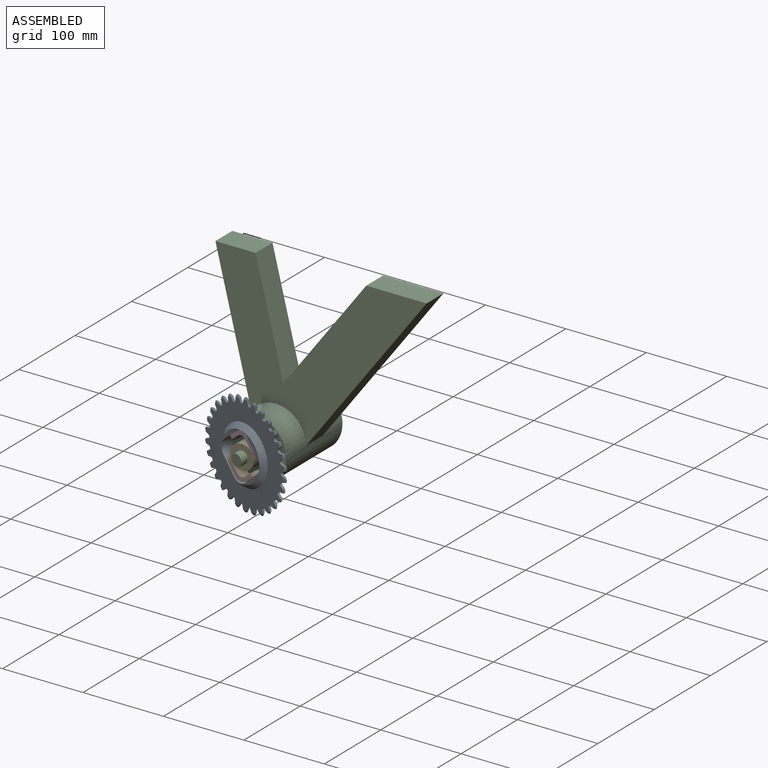
[diagram: assembled view]
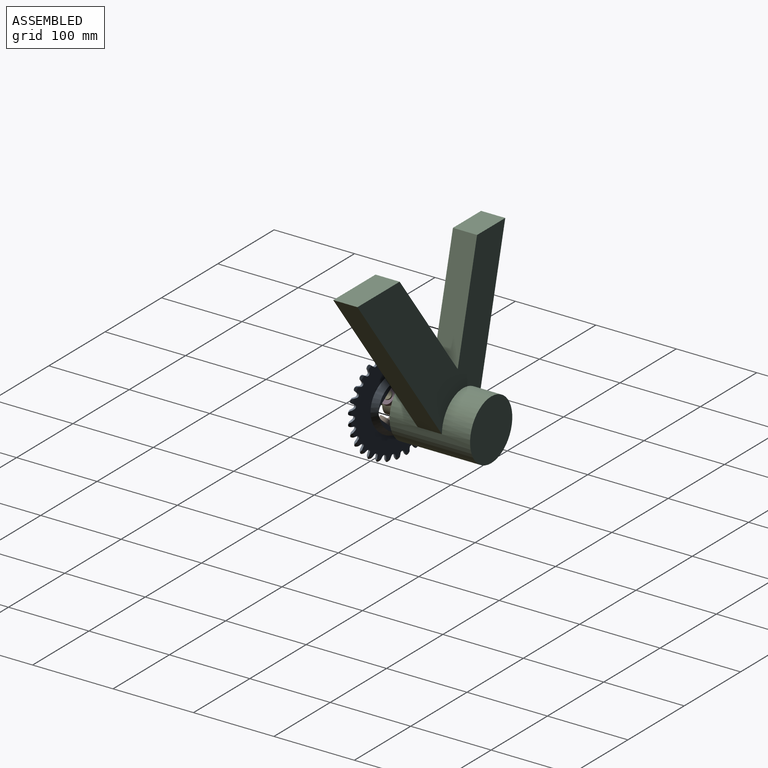
[diagram: assembled view, second angle]
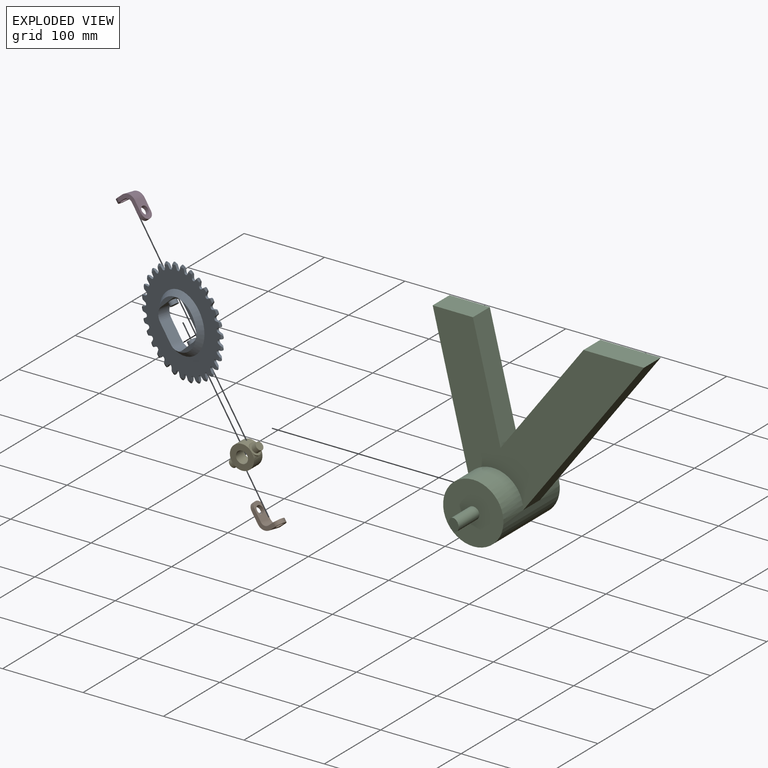
[diagram: exploded view]
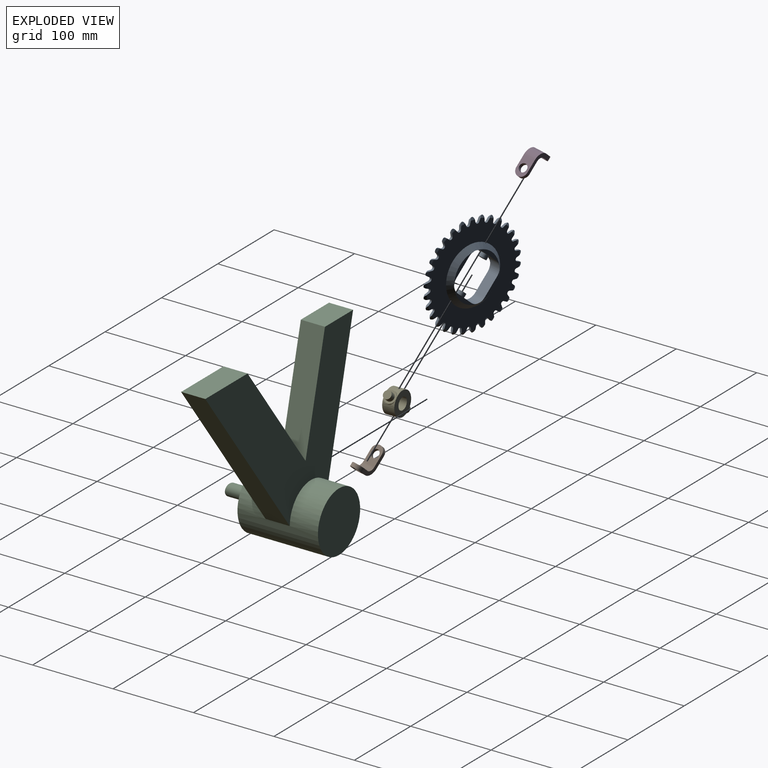
[diagram: exploded view, second angle]
ASSEMBLY  parts=5 mates=10
PART A: 294 faces, bbox 129.8x15x130 mm
  f0: plane 38.39x6.94mm, normal (0,1,0), area 116mm2, adj f35,f247,f250,f251
  f1: plane 38.39x6.94mm, normal (0,1,0), area 116mm2, adj f35,f248,f251,f252
  f2: plane 38.39x6.94mm, normal (0,1,0), area 116mm2, adj f35,f249,f252,f253
  f3: plane 124x123.77mm, normal (0,1,0), area 7133.3mm2, adj f4,f5,f6,f7,f8,f9,f10,f11
  f4: cone r=62mm half-angle=63.4deg, axis (0,-1,0), area 13.4mm2, adj f3,f240,f241,f242,f243,f244,f245,f258
  f5: cone r=62mm half-angle=63.4deg, axis (0,-1,0), area 13.4mm2, adj f3,f233,f234,f235,f236,f237,f238,f259
  f6: cone r=62mm half-angle=63.4deg, axis (0,-1,0), area 13.4mm2, adj f3,f226,f227,f228,f229,f230,f231,f260
  f7: cone r=62mm half-angle=63.4deg, axis (0,-1,0), area 13.4mm2, adj f3,f219,f220,f221,f222,f223,f224,f261
  f8: cone r=62mm half-angle=63.4deg, axis (0,-1,0), area 13.4mm2, adj f3,f212,f213,f214,f215,f216,f217,f262
  f9: cone r=62mm half-angle=63.4deg, axis (0,-1,0), area 13.4mm2, adj f3,f205,f206,f207,f208,f209,f210,f263
  f10: cone r=62mm half-angle=63.4deg, axis (0,-1,0), area 13.4mm2, adj f3,f198,f199,f200,f201,f202,f203,f264
  f11: cone r=62mm half-angle=63.4deg, axis (0,-1,0), area 13.4mm2, adj f3,f191,f192,f193,f194,f195,f196,f265
  f12: cone r=62mm half-angle=63.4deg, axis (0,-1,0), area 13.4mm2, adj f3,f184,f185,f186,f187,f188,f189,f266
  f13: cone r=62mm half-angle=63.4deg, axis (0,-1,0), area 13.4mm2, adj f3,f177,f178,f179,f180,f181,f182,f267
  f14: cone r=62mm half-angle=63.4deg, axis (0,-1,0), area 13.4mm2, adj f3,f170,f171,f172,f173,f174,f175,f268
  f15: cone r=62mm half-angle=63.4deg, axis (0,-1,0), area 13.4mm2, adj f3,f163,f164,f165,f166,f167,f168,f269
  f16: cone r=62mm half-angle=63.4deg, axis (0,-1,0), area 13.4mm2, adj f3,f156,f157,f158,f159,f160,f161,f270
  f17: cone r=62mm half-angle=63.4deg, axis (0,-1,0), area 13.4mm2, adj f3,f149,f150,f151,f152,f153,f154,f271
  f18: cone r=62mm half-angle=63.4deg, axis (0,-1,0), area 13.4mm2, adj f3,f142,f143,f144,f145,f146,f147,f272
  f19: cone r=62mm half-angle=63.4deg, axis (0,-1,0), area 13.4mm2, adj f3,f135,f136,f137,f139,f140,f141,f273
  f20: cone r=62mm half-angle=63.4deg, axis (0,-1,0), area 13.4mm2, adj f3,f128,f129,f130,f132,f133,f134,f274
  f21: cone r=62mm half-angle=63.4deg, axis (0,-1,0), area 13.4mm2, adj f3,f121,f122,f123,f125,f126,f127,f275
  f22: cone r=62mm half-angle=63.4deg, axis (0,-1,0), area 13.4mm2, adj f3,f114,f115,f116,f118,f119,f120,f276
  f23: cone r=62mm half-angle=63.4deg, axis (0,-1,0), area 13.4mm2, adj f3,f107,f108,f109,f111,f112,f113,f277
  f24: cone r=62mm half-angle=63.4deg, axis (0,-1,0), area 13.4mm2, adj f3,f100,f101,f102,f104,f105,f106,f278
  f25: cone r=62mm half-angle=63.4deg, axis (0,-1,0), area 13.4mm2, adj f3,f93,f94,f95,f97,f98,f99,f279
  f26: cone r=62mm half-angle=63.4deg, axis (0,-1,0), area 13.4mm2, adj f3,f86,f87,f88,f90,f91,f92,f280
  f27: cone r=62mm half-angle=63.4deg, axis (0,-1,0), area 13.4mm2, adj f3,f79,f80,f81,f83,f84,f85,f281
  f28: cone r=62mm half-angle=63.4deg, axis (0,-1,0), area 13.4mm2, adj f3,f72,f73,f74,f76,f77,f78,f282
  f29: cone r=62mm half-angle=63.4deg, axis (0,-1,0), area 13.4mm2, adj f3,f65,f66,f67,f69,f70,f71,f283
  f30: cone r=62mm half-angle=63.4deg, axis (0,-1,0), area 13.4mm2, adj f3,f58,f59,f60,f62,f63,f64,f284
  f31: cone r=62mm half-angle=63.4deg, axis (0,-1,0), area 13.4mm2, adj f3,f51,f52,f53,f55,f56,f57,f285
  f32: cone r=62mm half-angle=63.4deg, axis (0,-1,0), area 13.4mm2, adj f3,f44,f45,f46,f48,f49,f50,f286
  f33: cone r=62mm half-angle=63.4deg, axis (0,-1,0), area 13.4mm2, adj f3,f36,f37,f38,f41,f42,f43,f287
  f34: plane 38.39x6.94mm, normal (0,1,0), area 116mm2, adj f35,f246,f250,f253
  f35: cone r=30mm half-angle=45deg, axis (0,-1,0), area 1755.7mm2, adj f0,f1,f2,f3,f34,f250,f251,f252
  f36: plane 1.25x0.36mm, normal (-0.28,0,0.96), area 0.2mm2, adj f33,f38,f287
  f37: plane 5.09x3mm, normal (-0.97,0,0.25), area 15mm2, adj f3,f33,f38,f39,f257,f287
  f38: plane 1.84x1.53mm, normal (-0.8,0,0.6), area 2mm2, adj f33,f36,f37,f287
  f39: cylinder r=2.5mm len=4.65mm, axis (0,-1,0), area 18.2mm2, adj f3,f37,f245,f257
  f40: cylinder r=2.5mm len=4.65mm, axis (0,-1,0), area 18.2mm2, adj f3,f43,f45,f257
  f41: plane 1.25x0.36mm, normal (0.28,0,0.96), area 0.2mm2, adj f33,f42,f287
  f42: plane 1.84x1.53mm, normal (0.8,0,0.6), area 2mm2, adj f33,f41,f43,f287
  f43: plane 5.09x3mm, normal (0.97,0,0.25), area 15mm2, adj f3,f33,f40,f42,f257,f287
  f44: plane 1.3x0.35mm, normal (-0.07,0,1), area 0.2mm2, adj f32,f46,f286
  f45: plane 4.7x3mm, normal (-0.89,0,0.45), area 15mm2, adj f3,f32,f40,f46,f257,f286
  f46: plane 1.84x1.44mm, normal (-0.66,0,0.75), area 2mm2, adj f32,f44,f45,f286
  f47: cylinder r=2.5mm len=4.45mm, axis (0,-1,0), area 18.2mm2, adj f3,f50,f52,f257
  f48: plane 1.15x0.61mm, normal (0.47,0,0.88), area 0.2mm2, adj f32,f49,f286
  f49: plane 1.84x1.73mm, normal (0.91,0,0.42), area 2mm2, adj f32,f48,f50,f286
  f50: plane 5.26x3mm, normal (1,0,0.05), area 15mm2, adj f3,f32,f47,f49,f257,f286
  f51: plane 1.29x0.35mm, normal (0.14,0,0.99), area 0.2mm2, adj f31,f53,f285
  f52: plane 4.11x3.29mm, normal (-0.78,0,0.62), area 15mm2, adj f3,f31,f47,f53,f257,f285
  f53: plane 1.84x1.67mm, normal (-0.49,0,0.87), area 2mm2, adj f31,f51,f52,f285
  f54: cylinder r=2.5mm len=4.09mm, axis (0,-1,0), area 18.2mm2, adj f3,f57,f59,f257
  f55: plane 1x0.84mm, normal (0.64,0,0.77), area 0.2mm2, adj f31,f56,f285
  f56: plane 1.86x1.84mm, normal (0.97,0,0.22), area 2mm2, adj f31,f55,f57,f285
  f57: plane 5.19x3mm, normal (0.99,0,-0.16), area 15mm2, adj f3,f31,f54,f56,f257,f285
  f58: plane 1.22x0.45mm, normal (0.34,0,0.94), area 0.2mm2, adj f30,f60,f284
  f59: plane 4.07x3.34mm, normal (-0.63,0,0.77), area 15mm2, adj f3,f30,f54,f60,f257,f284
  f60: plane 1.84x1.82mm, normal (-0.29,0,0.96), area 2mm2, adj f30,f58,f59,f284
  f61: cylinder r=2.5mm len=3.65mm, axis (0,-1,0), area 18.2mm2, adj f3,f64,f66,f257
  f62: plane 1.03x0.8mm, normal (0.79,0,0.62), area 0.2mm2, adj f30,f63,f284
  f63: plane 1.9x1.84mm, normal (1,0,0.01), area 2mm2, adj f30,f62,f64,f284
  f64: plane 4.9x3mm, normal (0.93,0,-0.36), area 15mm2, adj f3,f30,f61,f63,f257,f284
  f65: plane 1.1x0.69mm, normal (0.53,0,0.85), area 0.2mm2, adj f29,f67,f283
  f66: plane 4.67x3mm, normal (-0.46,0,0.89), area 15mm2, adj f3,f29,f61,f67,f257,f283
  f67: plane 1.9x1.84mm, normal (-0.09,0,1), area 2mm2, adj f29,f65,f66,f283
  f68: cylinder r=2.5mm len=3.87mm, axis (0,-1,0), area 18.2mm2, adj f3,f71,f73,f257
  f69: plane 1.17x0.58mm, normal (0.9,0,0.44), area 0.2mm2, adj f29,f70,f283
  f70: plane 1.87x1.84mm, normal (0.98,0,-0.19), area 2mm2, adj f29,f69,f71,f283
  f71: plane 4.4x3mm, normal (0.84,0,-0.55), area 15mm2, adj f3,f29,f68,f70,f257,f283
  f72: plane 0.94x0.91mm, normal (0.69,0,0.72), area 0.2mm2, adj f28,f74,f282
  f73: plane 5.07x3mm, normal (-0.26,0,0.96), area 15mm2, adj f3,f28,f68,f74,f257,f282
  f74: plane 1.89x1.84mm, normal (0.12,0,0.99), area 2mm2, adj f28,f72,f73,f282
  f75: cylinder r=2.5mm len=4.28mm, axis (0,-1,0), area 18.2mm2, adj f3,f78,f80,f257
  f76: plane 1.26x0.35mm, normal (0.97,0,0.24), area 0.2mm2, adj f28,f77,f282
  f77: plane 1.84x1.75mm, normal (0.92,0,-0.39), area 2mm2, adj f28,f76,f78,f282
  f78: plane 3.74x3.7mm, normal (0.7,0,-0.71), area 15mm2, adj f3,f28,f75,f77,f257,f282
  f79: plane 1.08x0.73mm, normal (0.83,0,0.56), area 0.2mm2, adj f27,f81,f281
  f80: plane 5.25x3mm, normal (-0.06,0,1), area 15mm2, adj f3,f27,f75,f81,f257,f281
  f81: plane 1.84x1.8mm, normal (0.32,0,0.95), area 2mm2, adj f27,f79,f80,f281
  f82: cylinder r=2.5mm len=4.58mm, axis (0,-1,0), area 18.2mm2, adj f3,f85,f87,f257
  f83: plane 1.3x0.35mm, normal (1,0,0.04), area 0.2mm2, adj f27,f84,f281
  f84: plane 1.84x1.56mm, normal (0.82,0,-0.58), area 2mm2, adj f27,f83,f85,f281
  f85: plane 4.43x3mm, normal (0.54,0,-0.84), area 15mm2, adj f3,f27,f82,f84,f257,f281
  f86: plane 1.21x0.49mm, normal (0.93,0,0.37), area 0.2mm2, adj f26,f88,f280
  f87: plane 5.2x3mm, normal (0.15,0,0.99), area 15mm2, adj f3,f26,f82,f88,f257,f280
  f88: plane 1.84x1.64mm, normal (0.51,0,0.86), area 2mm2, adj f26,f86,f87,f280
  f89: cylinder r=2.5mm len=4.68mm, axis (0,-1,0), area 18.2mm2, adj f3,f92,f94,f257
  f90: plane 1.28x0.35mm, normal (0.98,0,-0.17), area 0.2mm2, adj f26,f91,f280
  f91: plane 1.84x1.4mm, normal (0.68,0,-0.73), area 2mm2, adj f26,f90,f92,f280
  f92: plane 4.92x3mm, normal (0.35,0,-0.94), area 15mm2, adj f3,f26,f89,f91,f257,f280
  f93: plane 1.28x0.35mm, normal (0.98,0,0.17), area 0.2mm2, adj f25,f95,f279
  f94: plane 4.92x3mm, normal (0.35,0,0.94), area 15mm2, adj f3,f25,f89,f95,f257,f279
  f95: plane 1.84x1.4mm, normal (0.68,0,0.73), area 2mm2, adj f25,f93,f94,f279
  f96: cylinder r=2.5mm len=4.58mm, axis (0,-1,0), area 18.2mm2, adj f3,f99,f101,f257
  f97: plane 1.21x0.49mm, normal (0.93,0,-0.37), area 0.2mm2, adj f25,f98,f279
  f98: plane 1.84x1.64mm, normal (0.51,0,-0.86), area 2mm2, adj f25,f97,f99,f279
  f99: plane 5.2x3mm, normal (0.15,0,-0.99), area 15mm2, adj f3,f25,f96,f98,f257,f279
  f100: plane 1.3x0.35mm, normal (1,0,-0.04), area 0.2mm2, adj f24,f102,f278
  f101: plane 4.43x3mm, normal (0.54,0,0.84), area 15mm2, adj f3,f24,f96,f102,f257,f278
  f102: plane 1.84x1.56mm, normal (0.82,0,0.58), area 2mm2, adj f24,f100,f101,f278
  f103: cylinder r=2.5mm len=4.28mm, axis (0,-1,0), area 18.2mm2, adj f3,f106,f108,f257
  f104: plane 1.08x0.73mm, normal (0.83,0,-0.56), area 0.2mm2, adj f24,f105,f278
  f105: plane 1.84x1.8mm, normal (0.32,0,-0.95), area 2mm2, adj f24,f104,f106,f278
  f106: plane 5.25x3mm, normal (-0.06,0,-1), area 15mm2, adj f3,f24,f103,f105,f257,f278
  f107: plane 1.26x0.35mm, normal (0.97,0,-0.24), area 0.2mm2, adj f23,f109,f277
  f108: plane 3.74x3.7mm, normal (0.7,0,0.71), area 15mm2, adj f3,f23,f103,f109,f257,f277
  f109: plane 1.84x1.75mm, normal (0.92,0,0.39), area 2mm2, adj f23,f107,f108,f277
  f110: cylinder r=2.5mm len=3.87mm, axis (0,-1,0), area 18.2mm2, adj f3,f113,f115,f257
  f111: plane 0.94x0.91mm, normal (0.69,0,-0.72), area 0.2mm2, adj f23,f112,f277
  f112: plane 1.89x1.84mm, normal (0.12,0,-0.99), area 2mm2, adj f23,f111,f113,f277
  f113: plane 5.07x3mm, normal (-0.26,0,-0.96), area 15mm2, adj f3,f23,f110,f112,f257,f277
  f114: plane 1.17x0.58mm, normal (0.9,0,-0.44), area 0.2mm2, adj f22,f116,f276
  f115: plane 4.4x3mm, normal (0.84,0,0.55), area 15mm2, adj f3,f22,f110,f116,f257,f276
  f116: plane 1.87x1.84mm, normal (0.98,0,0.19), area 2mm2, adj f22,f114,f115,f276
  f117: cylinder r=2.5mm len=3.65mm, axis (0,-1,0), area 18.2mm2, adj f3,f120,f122,f257
  f118: plane 1.1x0.69mm, normal (0.53,0,-0.85), area 0.2mm2, adj f22,f119,f276
  f119: plane 1.9x1.84mm, normal (-0.09,0,-1), area 2mm2, adj f22,f118,f120,f276
  f120: plane 4.67x3mm, normal (-0.46,0,-0.89), area 15mm2, adj f3,f22,f117,f119,f257,f276
  f121: plane 1.03x0.8mm, normal (0.79,0,-0.62), area 0.2mm2, adj f21,f123,f275
  f122: plane 4.9x3mm, normal (0.93,0,0.36), area 15mm2, adj f3,f21,f117,f123,f257,f275
  f123: plane 1.9x1.84mm, normal (1,0,-0.01), area 2mm2, adj f21,f121,f122,f275
  f124: cylinder r=2.5mm len=4.09mm, axis (0,-1,0), area 18.2mm2, adj f3,f127,f129,f257
  f125: plane 1.22x0.45mm, normal (0.34,0,-0.94), area 0.2mm2, adj f21,f126,f275
  f126: plane 1.84x1.82mm, normal (-0.29,0,-0.96), area 2mm2, adj f21,f125,f127,f275
  f127: plane 4.07x3.34mm, normal (-0.63,0,-0.77), area 15mm2, adj f3,f21,f124,f126,f257,f275
  f128: plane 1x0.84mm, normal (0.64,0,-0.77), area 0.2mm2, adj f20,f130,f274
  f129: plane 5.19x3mm, normal (0.99,0,0.16), area 15mm2, adj f3,f20,f124,f130,f257,f274
  f130: plane 1.86x1.84mm, normal (0.97,0,-0.22), area 2mm2, adj f20,f128,f129,f274
  f131: cylinder r=2.5mm len=4.45mm, axis (0,-1,0), area 18.2mm2, adj f3,f134,f136,f257
  f132: plane 1.29x0.35mm, normal (0.14,0,-0.99), area 0.2mm2, adj f20,f133,f274
  f133: plane 1.84x1.67mm, normal (-0.49,0,-0.87), area 2mm2, adj f20,f132,f134,f274
  f134: plane 4.11x3.29mm, normal (-0.78,0,-0.62), area 15mm2, adj f3,f20,f131,f133,f257,f274
  f135: plane 1.15x0.61mm, normal (0.47,0,-0.88), area 0.2mm2, adj f19,f137,f273
  f136: plane 5.26x3mm, normal (1,0,-0.05), area 15mm2, adj f3,f19,f131,f137,f257,f273
  f137: plane 1.84x1.73mm, normal (0.91,0,-0.42), area 2mm2, adj f19,f135,f136,f273
  f138: cylinder r=2.5mm len=4.65mm, axis (0,-1,0), area 18.2mm2, adj f3,f141,f143,f257
  f139: plane 1.3x0.35mm, normal (-0.07,0,-1), area 0.2mm2, adj f19,f140,f273
  f140: plane 1.84x1.44mm, normal (-0.66,0,-0.75), area 2mm2, adj f19,f139,f141,f273
  f141: plane 4.7x3mm, normal (-0.89,0,-0.45), area 15mm2, adj f3,f19,f138,f140,f257,f273
  f142: plane 1.25x0.36mm, normal (0.28,0,-0.96), area 0.2mm2, adj f18,f144,f272
  f143: plane 5.09x3mm, normal (0.97,0,-0.25), area 15mm2, adj f3,f18,f138,f144,f257,f272
  f144: plane 1.84x1.53mm, normal (0.8,0,-0.6), area 2mm2, adj f18,f142,f143,f272
  f145: plane 1.25x0.36mm, normal (-0.28,0,-0.96), area 0.2mm2, adj f18,f146,f272
  f146: plane 1.84x1.53mm, normal (-0.8,0,-0.6), area 2mm2, adj f18,f145,f147,f272
  f147: plane 5.09x3mm, normal (-0.97,0,-0.25), area 15mm2, adj f3,f18,f146,f148,f257,f272
  f148: cylinder r=2.5mm len=4.65mm, axis (0,-1,0), area 18.2mm2, adj f3,f147,f150,f257
  f149: plane 1.3x0.35mm, normal (0.07,0,-1), area 0.2mm2, adj f17,f151,f271
  f150: plane 4.7x3mm, normal (0.89,0,-0.45), area 15mm2, adj f3,f17,f148,f151,f257,f271
  f151: plane 1.84x1.44mm, normal (0.66,0,-0.75), area 2mm2, adj f17,f149,f150,f271
  f152: plane 1.15x0.61mm, normal (-0.47,0,-0.88), area 0.2mm2, adj f17,f153,f271
  f153: plane 1.84x1.73mm, normal (-0.91,0,-0.42), area 2mm2, adj f17,f152,f154,f271
  f154: plane 5.26x3mm, normal (-1,0,-0.05), area 15mm2, adj f3,f17,f153,f155,f257,f271
  f155: cylinder r=2.5mm len=4.45mm, axis (0,-1,0), area 18.2mm2, adj f3,f154,f157,f257
  f156: plane 1.29x0.35mm, normal (-0.14,0,-0.99), area 0.2mm2, adj f16,f158,f270
  f157: plane 4.11x3.29mm, normal (0.78,0,-0.62), area 15mm2, adj f3,f16,f155,f158,f257,f270
  f158: plane 1.84x1.67mm, normal (0.49,0,-0.87), area 2mm2, adj f16,f156,f157,f270
  f159: plane 1x0.84mm, normal (-0.64,0,-0.77), area 0.2mm2, adj f16,f160,f270
  f160: plane 1.86x1.84mm, normal (-0.97,0,-0.22), area 2mm2, adj f16,f159,f161,f270
  f161: plane 5.19x3mm, normal (-0.99,0,0.16), area 15mm2, adj f3,f16,f160,f162,f257,f270
  f162: cylinder r=2.5mm len=4.09mm, axis (0,-1,0), area 18.2mm2, adj f3,f161,f164,f257
  f163: plane 1.22x0.45mm, normal (-0.34,0,-0.94), area 0.2mm2, adj f15,f165,f269
  f164: plane 4.07x3.34mm, normal (0.63,0,-0.77), area 15mm2, adj f3,f15,f162,f165,f257,f269
  f165: plane 1.84x1.82mm, normal (0.29,0,-0.96), area 2mm2, adj f15,f163,f164,f269
  f166: plane 1.03x0.8mm, normal (-0.79,0,-0.62), area 0.2mm2, adj f15,f167,f269
  f167: plane 1.9x1.84mm, normal (-1,0,-0.01), area 2mm2, adj f15,f166,f168,f269
  f168: plane 4.9x3mm, normal (-0.93,0,0.36), area 15mm2, adj f3,f15,f167,f169,f257,f269
  f169: cylinder r=2.5mm len=3.65mm, axis (0,-1,0), area 18.2mm2, adj f3,f168,f171,f257
  f170: plane 1.1x0.69mm, normal (-0.53,0,-0.85), area 0.2mm2, adj f14,f172,f268
  f171: plane 4.67x3mm, normal (0.46,0,-0.89), area 15mm2, adj f3,f14,f169,f172,f257,f268
  f172: plane 1.9x1.84mm, normal (0.09,0,-1), area 2mm2, adj f14,f170,f171,f268
  f173: plane 1.17x0.58mm, normal (-0.9,0,-0.44), area 0.2mm2, adj f14,f174,f268
  f174: plane 1.87x1.84mm, normal (-0.98,0,0.19), area 2mm2, adj f14,f173,f175,f268
  f175: plane 4.4x3mm, normal (-0.84,0,0.55), area 15mm2, adj f3,f14,f174,f176,f257,f268
  f176: cylinder r=2.5mm len=3.87mm, axis (0,-1,0), area 18.2mm2, adj f3,f175,f178,f257
  f177: plane 0.94x0.91mm, normal (-0.69,0,-0.72), area 0.2mm2, adj f13,f179,f267
  f178: plane 5.07x3mm, normal (0.26,0,-0.96), area 15mm2, adj f3,f13,f176,f179,f257,f267
  f179: plane 1.89x1.84mm, normal (-0.12,0,-0.99), area 2mm2, adj f13,f177,f178,f267
  f180: plane 1.26x0.35mm, normal (-0.97,0,-0.24), area 0.2mm2, adj f13,f181,f267
  f181: plane 1.84x1.75mm, normal (-0.92,0,0.39), area 2mm2, adj f13,f180,f182,f267
  f182: plane 3.74x3.7mm, normal (-0.7,0,0.71), area 15mm2, adj f3,f13,f181,f183,f257,f267
  f183: cylinder r=2.5mm len=4.28mm, axis (0,-1,0), area 18.2mm2, adj f3,f182,f185,f257
  f184: plane 1.08x0.73mm, normal (-0.83,0,-0.56), area 0.2mm2, adj f12,f186,f266
  f185: plane 5.25x3mm, normal (0.06,0,-1), area 15mm2, adj f3,f12,f183,f186,f257,f266
  f186: plane 1.84x1.8mm, normal (-0.32,0,-0.95), area 2mm2, adj f12,f184,f185,f266
  f187: plane 1.3x0.35mm, normal (-1,0,-0.04), area 0.2mm2, adj f12,f188,f266
  f188: plane 1.84x1.56mm, normal (-0.82,0,0.58), area 2mm2, adj f12,f187,f189,f266
  f189: plane 4.43x3mm, normal (-0.54,0,0.84), area 15mm2, adj f3,f12,f188,f190,f257,f266
  f190: cylinder r=2.5mm len=4.58mm, axis (0,-1,0), area 18.2mm2, adj f3,f189,f192,f257
  f191: plane 1.21x0.49mm, normal (-0.93,0,-0.37), area 0.2mm2, adj f11,f193,f265
  f192: plane 5.2x3mm, normal (-0.15,0,-0.99), area 15mm2, adj f3,f11,f190,f193,f257,f265
  f193: plane 1.84x1.64mm, normal (-0.51,0,-0.86), area 2mm2, adj f11,f191,f192,f265
  f194: plane 1.28x0.35mm, normal (-0.98,0,0.17), area 0.2mm2, adj f11,f195,f265
  f195: plane 1.84x1.4mm, normal (-0.68,0,0.73), area 2mm2, adj f11,f194,f196,f265
  f196: plane 4.92x3mm, normal (-0.35,0,0.94), area 15mm2, adj f3,f11,f195,f197,f257,f265
  f197: cylinder r=2.5mm len=4.68mm, axis (0,-1,0), area 18.2mm2, adj f3,f196,f199,f257
  f198: plane 1.28x0.35mm, normal (-0.98,0,-0.17), area 0.2mm2, adj f10,f200,f264
  f199: plane 4.92x3mm, normal (-0.35,0,-0.94), area 15mm2, adj f3,f10,f197,f200,f257,f264
  f200: plane 1.84x1.4mm, normal (-0.68,0,-0.73), area 2mm2, adj f10,f198,f199,f264
  f201: plane 1.21x0.49mm, normal (-0.93,0,0.37), area 0.2mm2, adj f10,f202,f264
  f202: plane 1.84x1.64mm, normal (-0.51,0,0.86), area 2mm2, adj f10,f201,f203,f264
  f203: plane 5.2x3mm, normal (-0.15,0,0.99), area 15mm2, adj f3,f10,f202,f204,f257,f264
  f204: cylinder r=2.5mm len=4.58mm, axis (0,-1,0), area 18.2mm2, adj f3,f203,f206,f257
  f205: plane 1.3x0.35mm, normal (-1,0,0.04), area 0.2mm2, adj f9,f207,f263
  f206: plane 4.43x3mm, normal (-0.54,0,-0.84), area 15mm2, adj f3,f9,f204,f207,f257,f263
  f207: plane 1.84x1.56mm, normal (-0.82,0,-0.58), area 2mm2, adj f9,f205,f206,f263
  f208: plane 1.08x0.73mm, normal (-0.83,0,0.56), area 0.2mm2, adj f9,f209,f263
  f209: plane 1.84x1.8mm, normal (-0.32,0,0.95), area 2mm2, adj f9,f208,f210,f263
  f210: plane 5.25x3mm, normal (0.06,0,1), area 15mm2, adj f3,f9,f209,f211,f257,f263
  f211: cylinder r=2.5mm len=4.28mm, axis (0,-1,0), area 18.2mm2, adj f3,f210,f213,f257
  f212: plane 1.26x0.35mm, normal (-0.97,0,0.24), area 0.2mm2, adj f8,f214,f262
  f213: plane 3.74x3.7mm, normal (-0.7,0,-0.71), area 15mm2, adj f3,f8,f211,f214,f257,f262
  f214: plane 1.84x1.75mm, normal (-0.92,0,-0.39), area 2mm2, adj f8,f212,f213,f262
  f215: plane 0.94x0.91mm, normal (-0.69,0,0.72), area 0.2mm2, adj f8,f216,f262
  f216: plane 1.89x1.84mm, normal (-0.12,0,0.99), area 2mm2, adj f8,f215,f217,f262
  f217: plane 5.07x3mm, normal (0.26,0,0.96), area 15mm2, adj f3,f8,f216,f218,f257,f262
  f218: cylinder r=2.5mm len=3.87mm, axis (0,-1,0), area 18.2mm2, adj f3,f217,f220,f257
  f219: plane 1.17x0.58mm, normal (-0.9,0,0.44), area 0.2mm2, adj f7,f221,f261
  f220: plane 4.4x3mm, normal (-0.84,0,-0.55), area 15mm2, adj f3,f7,f218,f221,f257,f261
  f221: plane 1.87x1.84mm, normal (-0.98,0,-0.19), area 2mm2, adj f7,f219,f220,f261
  f222: plane 1.1x0.69mm, normal (-0.53,0,0.85), area 0.2mm2, adj f7,f223,f261
  f223: plane 1.9x1.84mm, normal (0.09,0,1), area 2mm2, adj f7,f222,f224,f261
  f224: plane 4.67x3mm, normal (0.46,0,0.89), area 15mm2, adj f3,f7,f223,f225,f257,f261
  f225: cylinder r=2.5mm len=3.65mm, axis (0,-1,0), area 18.2mm2, adj f3,f224,f227,f257
  f226: plane 1.03x0.8mm, normal (-0.79,0,0.62), area 0.2mm2, adj f6,f228,f260
  f227: plane 4.9x3mm, normal (-0.93,0,-0.36), area 15mm2, adj f3,f6,f225,f228,f257,f260
  f228: plane 1.9x1.84mm, normal (-1,0,0.01), area 2mm2, adj f6,f226,f227,f260
  f229: plane 1.22x0.45mm, normal (-0.34,0,0.94), area 0.2mm2, adj f6,f230,f260
  f230: plane 1.84x1.82mm, normal (0.29,0,0.96), area 2mm2, adj f6,f229,f231,f260
  f231: plane 4.07x3.34mm, normal (0.63,0,0.77), area 15mm2, adj f3,f6,f230,f232,f257,f260
  f232: cylinder r=2.5mm len=4.09mm, axis (0,-1,0), area 18.2mm2, adj f3,f231,f234,f257
  f233: plane 1x0.84mm, normal (-0.64,0,0.77), area 0.2mm2, adj f5,f235,f259
  f234: plane 5.19x3mm, normal (-0.99,0,-0.16), area 15mm2, adj f3,f5,f232,f235,f257,f259
  f235: plane 1.86x1.84mm, normal (-0.97,0,0.22), area 2mm2, adj f5,f233,f234,f259
  f236: plane 1.29x0.35mm, normal (-0.14,0,0.99), area 0.2mm2, adj f5,f237,f259
  f237: plane 1.84x1.67mm, normal (0.49,0,0.87), area 2mm2, adj f5,f236,f238,f259
  f238: plane 4.11x3.29mm, normal (0.78,0,0.62), area 15mm2, adj f3,f5,f237,f239,f257,f259
  f239: cylinder r=2.5mm len=4.45mm, axis (0,-1,0), area 18.2mm2, adj f3,f238,f241,f257
  f240: plane 1.15x0.61mm, normal (-0.47,0,0.88), area 0.2mm2, adj f4,f242,f258
  f241: plane 5.26x3mm, normal (-1,0,0.05), area 15mm2, adj f3,f4,f239,f242,f257,f258
  f242: plane 1.84x1.73mm, normal (-0.91,0,0.42), area 2mm2, adj f4,f240,f241,f258
  f243: plane 1.3x0.35mm, normal (0.07,0,1), area 0.2mm2, adj f4,f244,f258
  f244: plane 1.84x1.44mm, normal (0.66,0,0.75), area 2mm2, adj f4,f243,f245,f258
  f245: plane 4.7x3mm, normal (0.89,0,0.45), area 15mm2, adj f3,f4,f39,f244,f257,f258
  f246: plane 25x15mm, normal (1,0,0), area 296.5mm2, adj f34,f250,f253,f288,f290
  f247: plane 25x15mm, normal (0,0,1), area 375mm2, adj f0,f250,f251,f254
  f248: plane 25x15mm, normal (-1,0,0), area 296.5mm2, adj f1,f251,f252,f255,f292
  f249: plane 25x15mm, normal (0,0,-1), area 375mm2, adj f2,f252,f253,f256
  f250: cylinder r=12.5mm len=15mm, axis (0,-1,0), area 293.2mm2, adj f0,f34,f35,f246,f247,f254,f288,f289
  f251: cylinder r=12.5mm len=15mm, axis (0,-1,0), area 293.2mm2, adj f0,f1,f35,f247,f248,f254,f255,f289
  f252: cylinder r=12.5mm len=15mm, axis (0,-1,0), area 293.2mm2, adj f1,f2,f35,f248,f249,f255,f256,f289
  f253: cylinder r=12.5mm len=15mm, axis (0,-1,0), area 293.2mm2, adj f2,f34,f35,f246,f249,f256,f288,f289
  f254: plane 38.39x6.94mm, normal (0,-1,0), area 116mm2, adj f247,f250,f251,f289
  f255: plane 38.39x6.94mm, normal (0,-1,0), area 116mm2, adj f248,f251,f252,f289
  f256: plane 38.39x6.94mm, normal (0,-1,0), area 116mm2, adj f249,f252,f253,f289
  f257: plane 124x123.77mm, normal (0,-1,0), area 7133.3mm2, adj f37,f39,f40,f43,f45,f47,f50,f52
  f258: cone r=62mm half-angle=63.4deg, axis (0,1,0), area 13.4mm2, adj f4,f240,f241,f242,f243,f244,f245,f257
  f259: cone r=62mm half-angle=63.4deg, axis (0,1,0), area 13.4mm2, adj f5,f233,f234,f235,f236,f237,f238,f257
  f260: cone r=62mm half-angle=63.4deg, axis (0,1,0), area 13.4mm2, adj f6,f226,f227,f228,f229,f230,f231,f257
  f261: cone r=62mm half-angle=63.4deg, axis (0,1,0), area 13.4mm2, adj f7,f219,f220,f221,f222,f223,f224,f257
  f262: cone r=62mm half-angle=63.4deg, axis (0,1,0), area 13.4mm2, adj f8,f212,f213,f214,f215,f216,f217,f257
  f263: cone r=62mm half-angle=63.4deg, axis (0,1,0), area 13.4mm2, adj f9,f205,f206,f207,f208,f209,f210,f257
  f264: cone r=62mm half-angle=63.4deg, axis (0,1,0), area 13.4mm2, adj f10,f198,f199,f200,f201,f202,f203,f257
  f265: cone r=62mm half-angle=63.4deg, axis (0,1,0), area 13.4mm2, adj f11,f191,f192,f193,f194,f195,f196,f257
  f266: cone r=62mm half-angle=63.4deg, axis (0,1,0), area 13.4mm2, adj f12,f184,f185,f186,f187,f188,f189,f257
  f267: cone r=62mm half-angle=63.4deg, axis (0,1,0), area 13.4mm2, adj f13,f177,f178,f179,f180,f181,f182,f257
  f268: cone r=62mm half-angle=63.4deg, axis (0,1,0), area 13.4mm2, adj f14,f170,f171,f172,f173,f174,f175,f257
  f269: cone r=62mm half-angle=63.4deg, axis (0,1,0), area 13.4mm2, adj f15,f163,f164,f165,f166,f167,f168,f257
  f270: cone r=62mm half-angle=63.4deg, axis (0,1,0), area 13.4mm2, adj f16,f156,f157,f158,f159,f160,f161,f257
  f271: cone r=62mm half-angle=63.4deg, axis (0,1,0), area 13.4mm2, adj f17,f149,f150,f151,f152,f153,f154,f257
  f272: cone r=62mm half-angle=63.4deg, axis (0,1,0), area 13.4mm2, adj f18,f142,f143,f144,f145,f146,f147,f257
  f273: cone r=62mm half-angle=63.4deg, axis (0,1,0), area 13.4mm2, adj f19,f135,f136,f137,f139,f140,f141,f257
  f274: cone r=62mm half-angle=63.4deg, axis (0,1,0), area 13.4mm2, adj f20,f128,f129,f130,f132,f133,f134,f257
  f275: cone r=62mm half-angle=63.4deg, axis (0,1,0), area 13.4mm2, adj f21,f121,f122,f123,f125,f126,f127,f257
  f276: cone r=62mm half-angle=63.4deg, axis (0,1,0), area 13.4mm2, adj f22,f114,f115,f116,f118,f119,f120,f257
  f277: cone r=62mm half-angle=63.4deg, axis (0,1,0), area 13.4mm2, adj f23,f107,f108,f109,f111,f112,f113,f257
  f278: cone r=62mm half-angle=63.4deg, axis (0,1,0), area 13.4mm2, adj f24,f100,f101,f102,f104,f105,f106,f257
  f279: cone r=62mm half-angle=63.4deg, axis (0,1,0), area 13.4mm2, adj f25,f93,f94,f95,f97,f98,f99,f257
  f280: cone r=62mm half-angle=63.4deg, axis (0,1,0), area 13.4mm2, adj f26,f86,f87,f88,f90,f91,f92,f257
  f281: cone r=62mm half-angle=63.4deg, axis (0,1,0), area 13.4mm2, adj f27,f79,f80,f81,f83,f84,f85,f257
  f282: cone r=62mm half-angle=63.4deg, axis (0,1,0), area 13.4mm2, adj f28,f72,f73,f74,f76,f77,f78,f257
  f283: cone r=62mm half-angle=63.4deg, axis (0,1,0), area 13.4mm2, adj f29,f65,f66,f67,f69,f70,f71,f257
  f284: cone r=62mm half-angle=63.4deg, axis (0,1,0), area 13.4mm2, adj f30,f58,f59,f60,f62,f63,f64,f257
  f285: cone r=62mm half-angle=63.4deg, axis (0,1,0), area 13.4mm2, adj f31,f51,f52,f53,f55,f56,f57,f257
  f286: cone r=62mm half-angle=63.4deg, axis (0,1,0), area 13.4mm2, adj f32,f44,f45,f46,f48,f49,f50,f257
  f287: cone r=62mm half-angle=63.4deg, axis (0,1,0), area 13.4mm2, adj f33,f36,f37,f38,f41,f42,f43,f257
  f288: plane 38.39x6.94mm, normal (0,-1,0), area 116mm2, adj f246,f250,f253,f289
  f289: cone r=30mm half-angle=45deg, axis (0,1,0), area 1755.7mm2, adj f250,f251,f252,f253,f254,f255,f256,f257
  f290: cylinder r=5mm len=10mm, axis (-1,0,0), area 157.1mm2, adj f246,f291
  f291: plane 10x10mm, normal (1,0,0), area 78.5mm2, adj f290
  f292: cylinder r=5mm len=10mm, axis (1,0,0), area 157.1mm2, adj f248,f293
  f293: plane 10x10mm, normal (-1,0,0), area 78.5mm2, adj f292
PART B: 12 faces, bbox 27.5x15x35 mm
  f0: cylinder r=7.5mm len=15mm, axis (0,1,0), area 176.7mm2, adj f1,f5,f6,f7
  f1: plane 22.5x15mm, normal (-1,0,0), area 234.8mm2, adj f0,f6,f7,f9,f11
  f2: plane 22.5x15mm, normal (1,0,0), area 234.8mm2, adj f3,f6,f7,f9,f11
  f3: cylinder r=12.5mm len=15mm, axis (0,1,0), area 294.5mm2, adj f2,f4,f6,f7
  f4: plane 15x15mm, normal (0,0,1), area 122.3mm2, adj f3,f6,f7,f8,f10
  f5: plane 15x15mm, normal (0,0,-1), area 122.3mm2, adj f0,f6,f7,f8,f10
  f6: plane 27.5x20mm, normal (0,-1,0), area 191mm2, adj f0,f1,f2,f3,f4,f5,f8,f9
  f7: plane 27.5x20mm, normal (0,1,0), area 191mm2, adj f0,f1,f2,f3,f4,f5,f8,f9
  f8: cylinder r=7.5mm len=15mm, axis (0,0,1), area 117.8mm2, adj f4,f5,f6,f7
  f9: cylinder r=7.5mm len=15mm, axis (-1,0,0), area 117.8mm2, adj f1,f2,f6,f7
  f10: cylinder r=5mm len=10mm, axis (0,0,1), area 157.1mm2, adj f4,f5
  f11: cylinder r=5mm len=10mm, axis (1,0,0), area 157.1mm2, adj f1,f2
PART C: 13 faces, bbox 262.5x136.7x237.5 mm
  f0: plane 178.14x44.53mm, normal (-0.97,0,-0.24), area 5508.5mm2, adj f2,f6,f7,f8
  f1: plane 200x150mm, normal (0.8,0,-0.6), area 7500mm2, adj f3,f6,f7,f8
  f2: plane 50x30mm, normal (0,0,1), area 1500mm2, adj f0,f5,f6,f7
  f3: plane 75x30mm, normal (0,0,1), area 2250mm2, adj f1,f4,f6,f7
  f4: plane 137.5x103.13mm, normal (-0.8,0,0.6), area 5156.2mm2, adj f3,f5,f6,f7
  f5: plane 137.5x34.38mm, normal (0.97,0,0.24), area 4252mm2, adj f2,f4,f6,f7
  f6: plane 262.5x200mm, normal (0,-1,0), area 21002.3mm2, adj f0,f1,f2,f3,f4,f5,f8
  f7: plane 262.5x200mm, normal (0,1,0), area 21002.3mm2, adj f0,f1,f2,f3,f4,f5,f8
  f8: cylinder r=37.5mm len=100mm, axis (0,1,0), area 20728mm2, adj f0,f1,f6,f7,f9,f10
  f9: plane 75x75mm, normal (0,-1,0), area 4241.2mm2, adj f8,f11
  f10: plane 75x75mm, normal (0,1,0), area 4417.9mm2, adj f8
  f11: cylinder r=7.5mm len=36.68mm, axis (0,1,0), area 1632.4mm2, adj f9,f12
  f12: plane 15x15mm, normal (-0.26,-0.97,0), area 182.9mm2, adj f11
PART D: same geometry as B
PART E: 15 faces, bbox 44x15x30 mm
  f0: cylinder r=15mm len=30mm, axis (0,1,0), area 524mm2, adj f2,f3,f6,f8
  f1: cylinder r=15mm len=30mm, axis (0,1,0), area 524mm2, adj f2,f3,f4,f7
  f2: plane 30x30mm, normal (0,-1,0), area 530.1mm2, adj f0,f1,f14
  f3: plane 30x30mm, normal (0,1,0), area 530.1mm2, adj f0,f1,f14
  f4: cylinder r=7.5mm len=15mm, axis (-1,0,0), area 23.2mm2, adj f1,f5
  f5: plane 15x15mm, normal (1,0,0), area 98.2mm2, adj f4,f6,f12
  f6: cylinder r=7.5mm len=15mm, axis (-1,0,0), area 23.3mm2, adj f0,f5
  f7: cylinder r=7.5mm len=15mm, axis (-1,0,0), area 23.2mm2, adj f1,f9
  f8: cylinder r=7.5mm len=15mm, axis (-1,0,0), area 23.2mm2, adj f0,f9
  f9: plane 15x15mm, normal (-1,0,0), area 98.2mm2, adj f7,f8,f11
  f10: plane 10x10mm, normal (-1,0,0), area 78.5mm2, adj f11
  f11: cylinder r=5mm len=10mm, axis (-1,0,0), area 219.9mm2, adj f9,f10
  f12: cylinder r=5mm len=10mm, axis (-1,0,0), area 219.9mm2, adj f5,f13
  f13: plane 10x10mm, normal (1,0,0), area 78.5mm2, adj f12
  f14: cylinder r=7.5mm len=15mm, axis (0,-1,0), area 706.9mm2, adj f2,f3
PLACE A rot(axis=(-0.13,-0.99,-0.06),132.1deg) t=(0,-67.5,0)mm
PLACE B rot(axis=(0.03,1,-0.09),139.5deg) t=(0,-67.5,0)mm
PLACE C at identity fixed
PLACE D rot(axis=(-0.23,-0.97,-0.08),41.8deg) t=(0,-67.5,0)mm
PLACE E rot(axis=(0,-1,0),40.6deg) t=(0,-67.5,0)mm
MATE cylindrical D.f11 <-> E.f11  axis (-0.76,0,-0.65) through (11.38,-67.5,9.77)mm
MATE planar C.f8 <-> E.f0  axis (0,-1,0) through (0,-50,0)mm
MATE cylindrical B.f11 <-> E.f11  axis (-0.76,0,-0.65) through (-11.38,-67.5,-9.77)mm
MATE cylindrical A.f290 <-> B.f8  axis (0.64,-0.17,-0.75) through (14.44,-71.37,-16.82)mm
MATE planar E.f4 <-> D.f11  axis (0.76,0,0.65) through (11.38,-67.5,9.77)mm
MATE cylindrical E.f14 <-> C.f11  axis (0,-1,0) through (0,-75,0)mm
MATE cylindrical A.f292 <-> D.f10  axis (-0.64,0.17,0.75) through (-14.44,-63.63,16.82)mm
MATE planar A.f290 <-> D.f10  axis (0.64,-0.17,-0.75) through (-16.04,-63.2,18.69)mm
MATE parallel A.f4 <-> C.f12  axis (-0.26,-0.97,0) through (-0.39,-68.95,0)mm
MATE planar E.f4 <-> B.f11  axis (-0.76,0,-0.65) through (-11.38,-67.5,-9.77)mm
